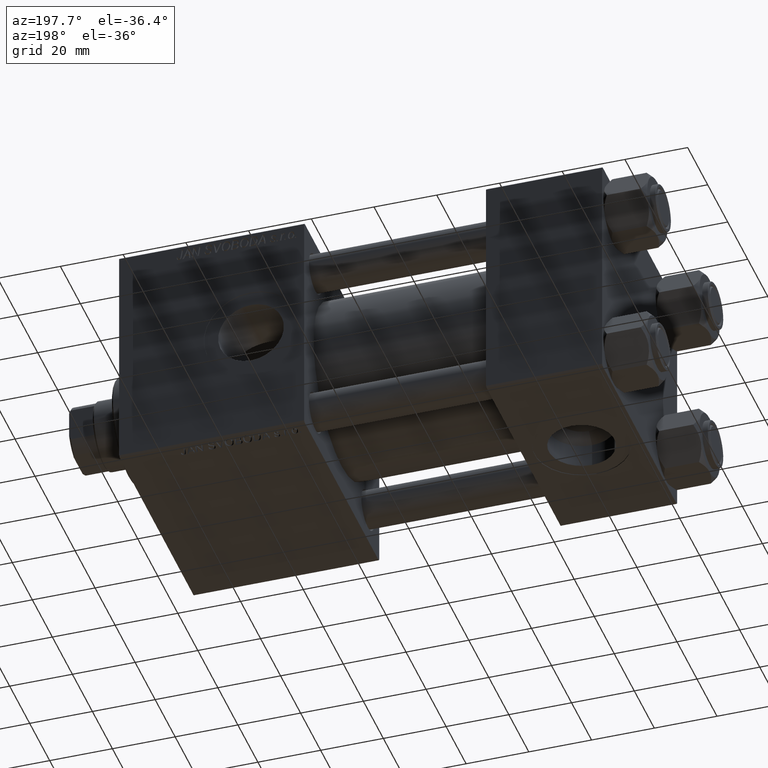
[diagram: clean part render]
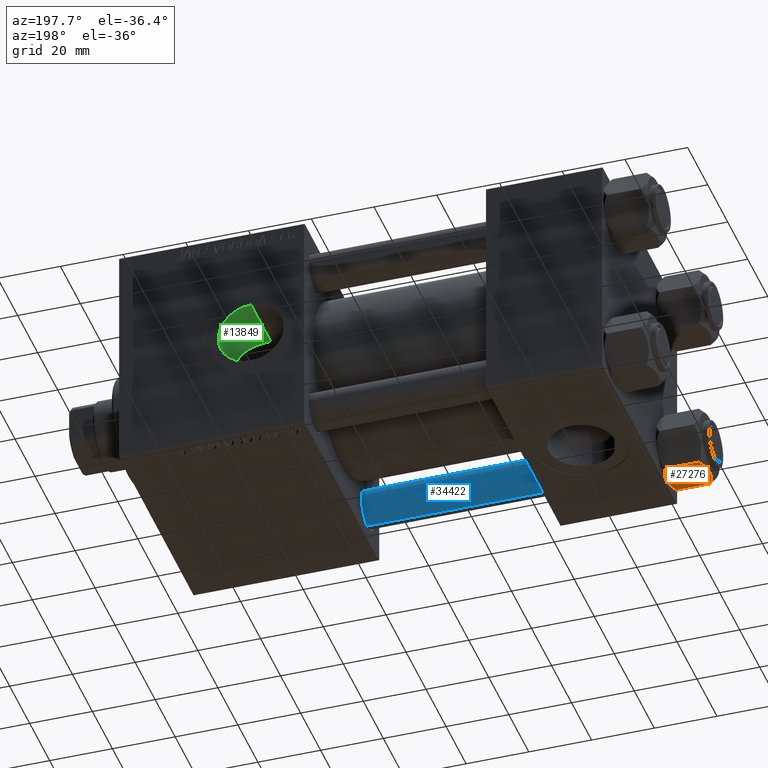
[diagram: same view with three faces highlighted in distinct colors, each labeled with its STEP entity id]
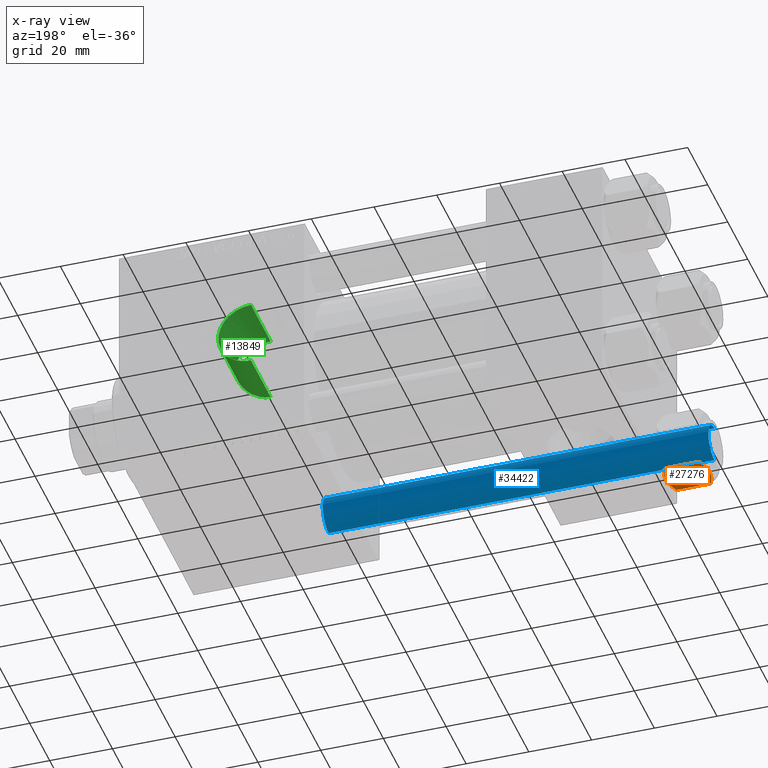
[diagram: x-ray of the same camera — body ghosted, the three highlighted faces saturated]
A machine part, auxiliary view with three faces highlighted in distinct colors.
The next image is the same camera in x-ray (body ghosted, the three faces saturated) — at least one of them is partly hidden behind the body in this view.
Their STEP definitions:

[orange] entity #27276 — the highlighted planar face has unit normal (-0, -0, 1).
#274 = CARTESIAN_POINT ( 'NONE',  ( 8.202333004087902779, 5.919572880271052995, -13.96005881939309212 ) ) ;
#514 = CARTESIAN_POINT ( 'NONE',  ( 8.460569896449619876, 5.472293462311864864, -14.00000000000000355 ) ) ;
#883 = FACE_OUTER_BOUND ( 'NONE', #45793, .T. ) ;
#1301 = CARTESIAN_POINT ( 'NONE',  ( 9.716999946243698005, 3.296092779912227044, -13.84547602999601779 ) ) ;
#1559 = CARTESIAN_POINT ( 'NONE',  ( 10.69662495661650503, 1.599332489581332339, -13.28854452935654962 ) ) ;
#2438 = CARTESIAN_POINT ( 'NONE',  ( 6.733375043383499126, 8.463882702393844326, -0.7114554706434494946 ) ) ;
#3075 = B_SPLINE_CURVE_WITH_KNOTS ( 'NONE', 3,
 ( #23482, #19173, #3940, #7752, #43015, #34670, #23728, #50134 ),
 .UNSPECIFIED., .F., .F.,
 ( 4, 2, 2, 4 ),
 ( 2.544312114903581015E-07, 0.003011550106433540791, 0.004517197944044564449, 0.006022845781655588107 ),
 .UNSPECIFIED. ) ;
#3784 = ORIENTED_EDGE ( 'NONE', *, *, #40224, .F. ) ;
#3940 = CARTESIAN_POINT ( 'NONE',  ( 10.69859855102501278, 1.595914123792262718, -0.7141438259524649501 ) ) ;
#4323 = CARTESIAN_POINT ( 'NONE',  ( 7.700834831386346835, 6.788193195293095172, -13.80960203119265728 ) ) ;
#5202 = PLANE ( 'NONE',  #15118 ) ;
#5827 = VERTEX_POINT ( 'NONE', #46801 ) ;
#6992 = CARTESIAN_POINT ( 'NONE',  ( 5.810000000000000497, 10.06321519197518022, -1.556784808024815892 ) ) ;
#7752 = CARTESIAN_POINT ( 'NONE',  ( 9.974696630283190757, 2.849749030213792000, -0.3002673809867367205 ) ) ;
#8380 = VERTEX_POINT ( 'NONE', #18326 ) ;
#10121 = CARTESIAN_POINT ( 'NONE',  ( 11.62000000000000099, -1.813166800014576593E-15, -14.00000000000000000 ) ) ;
#10271 = ORIENTED_EDGE ( 'NONE', *, *, #49629, .F. ) ;
#11714 = ORIENTED_EDGE ( 'NONE', *, *, #47803, .F. ) ;
#12551 = DIRECTION ( 'NONE',  ( -0.8660254037844387076, -0.4999999999999998335, 0.000000000000000000 ) ) ;
#12939 = CARTESIAN_POINT ( 'NONE',  ( 6.731401448974989599, 8.467301068182914392, -13.28585617404753272 ) ) ;
#13323 = CARTESIAN_POINT ( 'NONE',  ( 5.810000000000000497, 10.06321519197518022, -14.00000000000000000 ) ) ;
#14077 = CARTESIAN_POINT ( 'NONE',  ( 5.810000000000000497, 10.06321519197518022, -12.44321519197518278 ) ) ;
#15118 = AXIS2_PLACEMENT_3D ( 'NONE', #13323, #12551, #39463 ) ;
#15748 = ORIENTED_EDGE ( 'NONE', *, *, #44588, .F. ) ;
#16235 = CARTESIAN_POINT ( 'NONE',  ( 8.715000000000003411, 5.031607595987588333, -14.00000000000000000 ) ) ;
#17630 = VERTEX_POINT ( 'NONE', #24277 ) ;
#18326 = CARTESIAN_POINT ( 'NONE',  ( 8.715000000000003411, 5.031607595987588333, -14.00000000000000000 ) ) ;
#19173 = CARTESIAN_POINT ( 'NONE',  ( 11.16445427487472131, 0.7890283410877956261, -1.101239082899531985 ) ) ;
#19371 = B_SPLINE_CURVE_WITH_KNOTS ( 'NONE', 3,
 ( #25763, #37195, #45067, #2438, #21972, #6992 ),
 .UNSPECIFIED., .F., .F.,
 ( 4, 2, 4 ),
 ( 0.006022845781655588107, 0.009013049135303636758, 0.01200325248895168367 ),
 .UNSPECIFIED. ) ;
#20278 = VERTEX_POINT ( 'NONE', #14077 ) ;
#20327 = ORIENTED_EDGE ( 'NONE', *, *, #40240, .T. ) ;
#21489 = CARTESIAN_POINT ( 'NONE',  ( 11.62000000000000099, -1.924525737834042474E-15, -1.556784808024813893 ) ) ;
#21972 = CARTESIAN_POINT ( 'NONE',  ( 6.265018354709773973, 9.275100283241448196, -1.101766453314953154 ) ) ;
#23151 = VERTEX_POINT ( 'NONE', #21489 ) ;
#23482 = CARTESIAN_POINT ( 'NONE',  ( 11.62000000000000099, -1.924525737834042474E-15, -1.556784808024813893 ) ) ;
#23728 = CARTESIAN_POINT ( 'NONE',  ( 8.969430103550381617, 4.590921729663312689, 3.523657060577888622E-15 ) ) ;
#24277 = CARTESIAN_POINT ( 'NONE',  ( 8.715000000000005187, 5.031607595987590109, 0.000000000000000000 ) ) ;
#24393 = CARTESIAN_POINT ( 'NONE',  ( 8.715000000000003411, 5.031607595987588333, -14.00000000000000000 ) ) ;
#24648 = CARTESIAN_POINT ( 'NONE',  ( 9.220295946303432189, 4.156409344131451356, -14.00000000000000178 ) ) ;
#25515 = CARTESIAN_POINT ( 'NONE',  ( 5.810000000000000497, 10.06321519197518022, -14.00000000000000000 ) ) ;
#25593 = DIRECTION ( 'NONE',  ( -0.000000000000000000, -0.000000000000000000, 1.000000000000000000 ) ) ;
#25763 = CARTESIAN_POINT ( 'NONE',  ( 8.715000000000005187, 5.031607595987590109, 0.000000000000000000 ) ) ;
#26109 = VECTOR ( 'NONE', #25593, 1000.000000000000000 ) ;
#26296 = ORIENTED_EDGE ( 'NONE', *, *, #35121, .F. ) ;
#27276 = ADVANCED_FACE ( 'NONE', ( #883 ), #5202, .F. ) ;
#28707 = CARTESIAN_POINT ( 'NONE',  ( 11.62000000000000099, -1.795242522838921761E-15, -12.44321519197518455 ) ) ;
#29197 = VECTOR ( 'NONE', #33399, 1000.000000000000000 ) ;
#29847 = VERTEX_POINT ( 'NONE', #50206 ) ;
#31226 = CARTESIAN_POINT ( 'NONE',  ( 5.810000000000000497, 10.06321519197518022, -12.44321519197518278 ) ) ;
#32982 = LINE ( 'NONE', #10121, #26109 ) ;
#33399 = DIRECTION ( 'NONE',  ( -0.000000000000000000, -0.000000000000000000, 1.000000000000000000 ) ) ;
#34670 = CARTESIAN_POINT ( 'NONE',  ( 9.227666995912102266, 4.143642311704121894, -0.03994118060690670519 ) ) ;
#35121 = EDGE_CURVE ( 'NONE', #20278, #8380, #45777, .T. ) ;
#35289 = CARTESIAN_POINT ( 'NONE',  ( 6.265545725125283738, 9.274186850887380373, -12.89876091710046602 ) ) ;
#36828 = CARTESIAN_POINT ( 'NONE',  ( 11.16498164529022574, 0.7881149087337280257, -12.89823354668504862 ) ) ;
#37195 = CARTESIAN_POINT ( 'NONE',  ( 8.209704053696576409, 5.906805847843727086, 3.430483436379916373E-15 ) ) ;
#39338 = CARTESIAN_POINT ( 'NONE',  ( 7.455303369716809847, 7.213466161761385997, -13.69973261901326289 ) ) ;
#39463 = DIRECTION ( 'NONE',  ( 0.4999999999999998335, -0.8660254037844387076, 0.000000000000000000 ) ) ;
#40224 = EDGE_CURVE ( 'NONE', #17630, #5827, #19371, .T. ) ;
#40240 = EDGE_CURVE ( 'NONE', #20278, #5827, #45567, .T. ) ;
#41782 = B_SPLINE_CURVE_WITH_KNOTS ( 'NONE', 3,
 ( #24393, #24648, #1301, #1559, #36828, #28707 ),
 .UNSPECIFIED., .F., .F.,
 ( 4, 2, 4 ),
 ( 0.006022845781655591577, 0.009013049135303638493, 0.01200325248895168714 ),
 .UNSPECIFIED. ) ;
#43015 = CARTESIAN_POINT ( 'NONE',  ( 9.729165168613654657, 3.275021996682081493, -0.1903979688073405840 ) ) ;
#44588 = EDGE_CURVE ( 'NONE', #29847, #23151, #32982, .T. ) ;
#45067 = CARTESIAN_POINT ( 'NONE',  ( 7.713000053756307928, 6.767122412062951398, -0.1545239700039825748 ) ) ;
#45567 = LINE ( 'NONE', #25515, #29197 ) ;
#45777 = B_SPLINE_CURVE_WITH_KNOTS ( 'NONE', 3,
 ( #31226, #35289, #12939, #39338, #4323, #274, #514, #16235 ),
 .UNSPECIFIED., .F., .F.,
 ( 4, 2, 2, 4 ),
 ( 2.544312114902182352E-07, 0.003011550106433540791, 0.004517197944044566184, 0.006022845781655591577 ),
 .UNSPECIFIED. ) ;
#45793 = EDGE_LOOP ( 'NONE', ( #26296, #20327, #3784, #11714, #15748, #10271 ) ) ;
#46801 = CARTESIAN_POINT ( 'NONE',  ( 5.810000000000000497, 10.06321519197518022, -1.556784808024815892 ) ) ;
#47803 = EDGE_CURVE ( 'NONE', #23151, #17630, #3075, .T. ) ;
#49629 = EDGE_CURVE ( 'NONE', #8380, #29847, #41782, .T. ) ;
#50134 = CARTESIAN_POINT ( 'NONE',  ( 8.715000000000005187, 5.031607595987590109, 0.000000000000000000 ) ) ;
#50206 = CARTESIAN_POINT ( 'NONE',  ( 11.62000000000000099, -1.795242522838921761E-15, -12.44321519197518455 ) ) ;

[blue] entity #34422 — the highlighted cylindrical surface (edge-blend (fillet) strip) has radius 6 mm, axis along (-1, 0, -0).
#904 = EDGE_LOOP ( 'NONE', ( #28853, #45798, #32213, #46600 ) ) ;
#3795 = EDGE_CURVE ( 'NONE', #34484, #18796, #33601, .T. ) ;
#4112 = CARTESIAN_POINT ( 'NONE',  ( -6.000000000000000888, 0.000000000000000000, 123.5000000000000426 ) ) ;
#6136 = DIRECTION ( 'NONE',  ( -0.000000000000000000, -0.000000000000000000, 1.000000000000000000 ) ) ;
#7387 = CARTESIAN_POINT ( 'NONE',  ( 6.000000000000000888, 7.347880794884120722E-16, 0.4999999999999865663 ) ) ;
#8002 = EDGE_CURVE ( 'NONE', #34484, #45919, #45741, .T. ) ;
#9080 = CIRCLE ( 'NONE', #22070, 6.000000000000000888 ) ;
#15723 = AXIS2_PLACEMENT_3D ( 'NONE', #38973, #35180, #46846 ) ;
#16611 = DIRECTION ( 'NONE',  ( -0.000000000000000000, -0.000000000000000000, -1.000000000000000000 ) ) ;
#18110 = CARTESIAN_POINT ( 'NONE',  ( 6.000000000000000888, 7.347880794884120722E-16, 124.0000000000000000 ) ) ;
#18796 = VERTEX_POINT ( 'NONE', #7387 ) ;
#19579 = LINE ( 'NONE', #27191, #47191 ) ;
#22070 = AXIS2_PLACEMENT_3D ( 'NONE', #48527, #6136, #40655 ) ;
#23973 = FACE_OUTER_BOUND ( 'NONE', #904, .T. ) ;
#24734 = CYLINDRICAL_SURFACE ( 'NONE', #47756, 6.000000000000000888 ) ;
#27191 = CARTESIAN_POINT ( 'NONE',  ( -6.000000000000000888, 0.000000000000000000, 124.0000000000000000 ) ) ;
#28561 = VECTOR ( 'NONE', #44763, 1000.000000000000000 ) ;
#28853 = ORIENTED_EDGE ( 'NONE', *, *, #3795, .F. ) ;
#29793 = CARTESIAN_POINT ( 'NONE',  ( 6.000000000000000888, 7.347880794884120722E-16, 123.5000000000000426 ) ) ;
#32213 = ORIENTED_EDGE ( 'NONE', *, *, #48671, .T. ) ;
#33601 = LINE ( 'NONE', #18110, #28561 ) ;
#33613 = CARTESIAN_POINT ( 'NONE',  ( -6.000000000000000888, 0.000000000000000000, 0.4999999999999865663 ) ) ;
#34422 = ADVANCED_FACE ( 'NONE', ( #23973 ), #24734, .T. ) ;
#34484 = VERTEX_POINT ( 'NONE', #29793 ) ;
#34583 = DIRECTION ( 'NONE',  ( -0.000000000000000000, -0.000000000000000000, -1.000000000000000000 ) ) ;
#35180 = DIRECTION ( 'NONE',  ( 0.000000000000000000, 0.000000000000000000, -1.000000000000000000 ) ) ;
#35912 = CARTESIAN_POINT ( 'NONE',  ( 0.000000000000000000, 0.000000000000000000, 124.0000000000000000 ) ) ;
#38973 = CARTESIAN_POINT ( 'NONE',  ( 0.000000000000000000, 0.000000000000000000, 123.5000000000000426 ) ) ;
#40655 = DIRECTION ( 'NONE',  ( 1.000000000000000000, 0.000000000000000000, 0.000000000000000000 ) ) ;
#44763 = DIRECTION ( 'NONE',  ( -0.000000000000000000, -0.000000000000000000, -1.000000000000000000 ) ) ;
#45097 = EDGE_CURVE ( 'NONE', #47990, #18796, #9080, .T. ) ;
#45741 = CIRCLE ( 'NONE', #15723, 6.000000000000000888 ) ;
#45798 = ORIENTED_EDGE ( 'NONE', *, *, #8002, .T. ) ;
#45919 = VERTEX_POINT ( 'NONE', #4112 ) ;
#46600 = ORIENTED_EDGE ( 'NONE', *, *, #45097, .T. ) ;
#46846 = DIRECTION ( 'NONE',  ( 1.000000000000000000, 0.000000000000000000, 0.000000000000000000 ) ) ;
#47191 = VECTOR ( 'NONE', #34583, 1000.000000000000000 ) ;
#47582 = DIRECTION ( 'NONE',  ( -1.000000000000000000, 0.000000000000000000, 0.000000000000000000 ) ) ;
#47756 = AXIS2_PLACEMENT_3D ( 'NONE', #35912, #16611, #47582 ) ;
#47990 = VERTEX_POINT ( 'NONE', #33613 ) ;
#48527 = CARTESIAN_POINT ( 'NONE',  ( 0.000000000000000000, 0.000000000000000000, 0.4999999999999865663 ) ) ;
#48671 = EDGE_CURVE ( 'NONE', #45919, #47990, #19579, .T. ) ;

[green] entity #13849 — the highlighted cylindrical surface (edge-blend (fillet) strip) has radius 10.48 mm, axis along (0, 1, 0).
#840 = DIRECTION ( 'NONE',  ( 0.000000000000000000, 0.000000000000000000, 1.000000000000000000 ) ) ;
#1352 = CARTESIAN_POINT ( 'NONE',  ( 120.4999147892471996, 19.56116441448279275, -6.139806945683417894 ) ) ;
#1607 = CARTESIAN_POINT ( 'NONE',  ( 121.3974749849019759, 19.96693071714090095, 4.688762655380822153 ) ) ;
#1861 = CARTESIAN_POINT ( 'NONE',  ( 118.9214008731941590, 18.92439466425729577, -7.897867506656472969 ) ) ;
#2107 = CARTESIAN_POINT ( 'NONE',  ( 120.3010601172642851, 19.47534253776996493, 6.406026005484636521 ) ) ;
#5086 = EDGE_CURVE ( 'NONE', #27365, #20712, #27743, .T. ) ;
#5121 = EDGE_CURVE ( 'NONE', #26749, #11161, #45324, .T. ) ;
#5409 = CARTESIAN_POINT ( 'NONE',  ( 121.9121103210051160, 20.21538003116037530, 3.420739323187325542 ) ) ;
#5631 = CARTESIAN_POINT ( 'NONE',  ( 112.0000000000000000, -29.64191626734007912, 0.000000000000000000 ) ) ;
#5911 = CARTESIAN_POINT ( 'NONE',  ( 113.3976639497380461, 17.66125895070197771, 10.40936906255472216 ) ) ;
#6159 = CARTESIAN_POINT ( 'NONE',  ( 122.4802336042432813, 20.50011942302709045, -0.3425484063042021909 ) ) ;
#8955 = CARTESIAN_POINT ( 'NONE',  ( 118.4004368932585720, 18.74369128016567387, 8.305322126603240207 ) ) ;
#9212 = CARTESIAN_POINT ( 'NONE',  ( 118.1274724521041719, 18.65191114885655921, 8.508822594309938481 ) ) ;
#9422 = AXIS2_PLACEMENT_3D ( 'NONE', #5631, #36347, #21109 ) ;
#9713 = CARTESIAN_POINT ( 'NONE',  ( 114.7517918553086815, 17.82937747091141745, -10.11814121640941977 ) ) ;
#9962 = CARTESIAN_POINT ( 'NONE',  ( 118.9208000802965017, 18.92770044493005344, 7.876959711703419131 ) ) ;
#11161 = VERTEX_POINT ( 'NONE', #49710 ) ;
#13018 = CARTESIAN_POINT ( 'NONE',  ( 115.7316525968403909, 18.00698426560946785, -9.799012303646877697 ) ) ;
#13239 = FACE_OUTER_BOUND ( 'NONE', #38692, .T. ) ;
#13274 = CARTESIAN_POINT ( 'NONE',  ( 114.4117388817928571, 17.77978347898471867, -10.20468712638896314 ) ) ;
#13526 = CARTESIAN_POINT ( 'NONE',  ( 121.0753406510826693, 19.81579007690006478, 5.284993006292010520 ) ) ;
#13774 = CARTESIAN_POINT ( 'NONE',  ( 122.2033794505126423, 20.35988782059471802, -2.416918645675844246 ) ) ;
#13849 = ADVANCED_FACE ( 'NONE', ( #13239 ), #40396, .F. ) ;
#15258 = VECTOR ( 'NONE', #31290, 1000.000000000000000 ) ;
#16694 = CARTESIAN_POINT ( 'NONE',  ( 112.0000000000000000, 37.30000000000000426, -10.48000000000000043 ) ) ;
#16826 = CARTESIAN_POINT ( 'NONE',  ( 119.6355061185646207, 19.20084332853421927, -7.186262701390801588 ) ) ;
#17079 = CARTESIAN_POINT ( 'NONE',  ( 122.1171167833675071, 20.31668552684609352, 2.755963810480850373 ) ) ;
#17582 = CARTESIAN_POINT ( 'NONE',  ( 120.5059389822772431, 19.56378363404860465, 6.131479575291227668 ) ) ;
#17832 = CARTESIAN_POINT ( 'NONE',  ( 122.4097772764918375, 20.46384513083377144, 1.395899531135791571 ) ) ;
#19330 = LINE ( 'NONE', #49539, #19382 ) ;
#19382 = VECTOR ( 'NONE', #38372, 1000.000000000000000 ) ;
#20643 = CARTESIAN_POINT ( 'NONE',  ( 115.7388044511369003, 18.00843789971822062, 9.796359556932754842 ) ) ;
#20712 = VERTEX_POINT ( 'NONE', #16694 ) ;
#20891 = CARTESIAN_POINT ( 'NONE',  ( 121.9143567042892613, 20.21648401901770242, -3.414064357787312431 ) ) ;
#21109 = DIRECTION ( 'NONE',  ( 0.000000000000000000, 0.000000000000000000, 1.000000000000000000 ) ) ;
#21139 = CARTESIAN_POINT ( 'NONE',  ( 117.2809392282039056, 18.38534749593159034, 9.077687108452133558 ) ) ;
#21642 = CARTESIAN_POINT ( 'NONE',  ( 120.2950042909065473, 19.47275237916150914, -6.413928077769824654 ) ) ;
#23450 = DIRECTION ( 'NONE',  ( 0.000000000000000000, 1.000000000000000000, 0.000000000000000000 ) ) ;
#23676 = CARTESIAN_POINT ( 'NONE',  ( 112.0000000000000000, -29.64191626734007912, -10.48000000000000043 ) ) ;
#24439 = CARTESIAN_POINT ( 'NONE',  ( 122.4795256292976546, 20.49975749248165258, 0.7063185015118506049 ) ) ;
#24694 = CARTESIAN_POINT ( 'NONE',  ( 121.7943312172880610, 20.15775460056885393, 3.744079838711329433 ) ) ;
#25190 = CARTESIAN_POINT ( 'NONE',  ( 122.3928111929841691, 20.45554254497156421, -1.393750078236607681 ) ) ;
#25441 = CARTESIAN_POINT ( 'NONE',  ( 112.0000000000000142, 17.61872867150180966, 10.48000000000000043 ) ) ;
#26749 = VERTEX_POINT ( 'NONE', #38158 ) ;
#27365 = VERTEX_POINT ( 'NONE', #48839 ) ;
#27743 = CIRCLE ( 'NONE', #44798, 10.48000000000000043 ) ;
#28496 = CARTESIAN_POINT ( 'NONE',  ( 113.3856855712779037, 17.66007330123388641, -10.41139618991193849 ) ) ;
#28752 = CARTESIAN_POINT ( 'NONE',  ( 112.0000000000000000, 17.61872867150181321, -10.48000000000000043 ) ) ;
#29002 = CARTESIAN_POINT ( 'NONE',  ( 117.2698059898622773, 18.38209842868087662, -9.084287127380747506 ) ) ;
#29249 = CARTESIAN_POINT ( 'NONE',  ( 121.0695376723144818, 19.81313001252936346, -5.294847441557593903 ) ) ;
#30806 = LINE ( 'NONE', #23676, #15258 ) ;
#31290 = DIRECTION ( 'NONE',  ( -0.000000000000000000, 1.000000000000000000, -0.000000000000000000 ) ) ;
#32310 = CARTESIAN_POINT ( 'NONE',  ( 118.4022582705815552, 18.73818556942358526, -8.325035544684061151 ) ) ;
#32567 = CARTESIAN_POINT ( 'NONE',  ( 122.2035601589205243, 20.35997823095241799, 2.416228402922031115 ) ) ;
#32820 = CARTESIAN_POINT ( 'NONE',  ( 114.4142194256315150, 17.78018015198200175, 10.20399195237437162 ) ) ;
#33070 = CARTESIAN_POINT ( 'NONE',  ( 119.1694529724450433, 19.02032395108154006, 7.651277358185459398 ) ) ;
#35368 = CARTESIAN_POINT ( 'NONE',  ( 112.0000000000000000, 37.30000000000000426, 0.000000000000000000 ) ) ;
#35481 = EDGE_CURVE ( 'NONE', #11161, #20712, #30806, .T. ) ;
#36125 = CARTESIAN_POINT ( 'NONE',  ( 119.8707823291916839, 19.29586956751500182, 6.927882344545549742 ) ) ;
#36347 = DIRECTION ( 'NONE',  ( -0.000000000000000000, 1.000000000000000000, -0.000000000000000000 ) ) ;
#36379 = CARTESIAN_POINT ( 'NONE',  ( 121.7950853774353845, 20.15811396168941627, -3.742424843370363519 ) ) ;
#36625 = CARTESIAN_POINT ( 'NONE',  ( 121.3940450107149047, 19.96528801265270303, -4.696645970771019307 ) ) ;
#37119 = CARTESIAN_POINT ( 'NONE',  ( 119.8626657555755770, 19.29255042284154342, -6.937150480497088267 ) ) ;
#38158 = CARTESIAN_POINT ( 'NONE',  ( 112.0000000000000142, 17.61872867150180966, 10.48000000000000043 ) ) ;
#38297 = EDGE_CURVE ( 'NONE', #26749, #27365, #19330, .T. ) ;
#38372 = DIRECTION ( 'NONE',  ( -0.000000000000000000, 1.000000000000000000, -0.000000000000000000 ) ) ;
#38692 = EDGE_LOOP ( 'NONE', ( #38872, #49695, #44801, #38779 ) ) ;
#38779 = ORIENTED_EDGE ( 'NONE', *, *, #5086, .T. ) ;
#38872 = ORIENTED_EDGE ( 'NONE', *, *, #35481, .F. ) ;
#39926 = CARTESIAN_POINT ( 'NONE',  ( 122.1180965413908979, 20.31717585818016758, -2.752167632629412442 ) ) ;
#40179 = CARTESIAN_POINT ( 'NONE',  ( 122.3407356452803043, 20.42906981586845916, -1.737709488202404895 ) ) ;
#40396 = CYLINDRICAL_SURFACE ( 'NONE', #9422, 10.48000000000000043 ) ;
#40427 = CARTESIAN_POINT ( 'NONE',  ( 112.7062749642731063, 17.61872867150182032, 10.48000000000000043 ) ) ;
#40681 = CARTESIAN_POINT ( 'NONE',  ( 115.4136267970940537, 17.94339702168920780, 9.914545255425011305 ) ) ;
#40932 = CARTESIAN_POINT ( 'NONE',  ( 119.6444445321607617, 19.20440573111459770, 7.176738042502336157 ) ) ;
#43735 = CARTESIAN_POINT ( 'NONE',  ( 114.7496294778310357, 17.82899635519297021, 10.11882370961919975 ) ) ;
#43988 = CARTESIAN_POINT ( 'NONE',  ( 112.6958015189378699, 17.61872867150180966, -10.47999999999999865 ) ) ;
#44737 = CARTESIAN_POINT ( 'NONE',  ( 116.6847448576400552, 18.22055821971024159, 9.399534179362841968 ) ) ;
#44798 = AXIS2_PLACEMENT_3D ( 'NONE', #35368, #23450, #840 ) ;
#44801 = ORIENTED_EDGE ( 'NONE', *, *, #38297, .T. ) ;
#45324 = B_SPLINE_CURVE_WITH_KNOTS ( 'NONE', 3,
 ( #25441, #40427, #5911, #32820, #43735, #40681, #20643, #44737, #21139, #9212, #8955, #9962, #33070, #40932, #36125, #2107, #17582, #13526, #1607, #24694, #5409, #17079, #32567, #17832, #24439, #6159, #48551, #25190, #40179, #13774, #39926, #20891, #36379, #36625, #29249, #1352, #21642, #37119, #16826, #1861, #32310, #29002, #47794, #13018, #48045, #9713, #13274, #28496, #43988, #28752 ),
 .UNSPECIFIED., .F., .F.,
 ( 4, 2, 2, 2, 2, 2, 2, 2, 2, 2, 2, 2, 2, 2, 2, 2, 2, 2, 2, 2, 2, 2, 2, 2, 4 ),
 ( 1.398578778534940505E-17, 0.002085098827197961677, 0.003127648240796935576, 0.004170197654395909476, 0.006255296481593856407, 0.007297845895192831174, 0.008340395308791805074, 0.009382944722390779840, 0.01042549413598975287, 0.01251059296318770067, 0.01355314237678667544, 0.01459569179038564847, 0.01668079061758358933, 0.01772334003118256063, 0.01876588944478152846, 0.01980843885838049975, 0.02085098827197947105, 0.02293608709917739630, 0.02397863651277635719, 0.02502118592637532155, 0.02710628475357327455, 0.02919138358077123102, 0.03023393299437022660, 0.03127648240796922219, 0.03336158123516717866 ),
 .UNSPECIFIED. ) ;
#47794 = CARTESIAN_POINT ( 'NONE',  ( 116.6720912961967827, 18.21742687740514199, -9.405522624613402272 ) ) ;
#48045 = CARTESIAN_POINT ( 'NONE',  ( 115.4105071959817366, 17.94285099751830970, -9.915522212990259376 ) ) ;
#48551 = CARTESIAN_POINT ( 'NONE',  ( 122.4626750047746810, 20.49112648371635359, -0.6967750842739059980 ) ) ;
#48839 = CARTESIAN_POINT ( 'NONE',  ( 112.0000000000000000, 37.30000000000000426, 10.48000000000000043 ) ) ;
#49539 = CARTESIAN_POINT ( 'NONE',  ( 112.0000000000000000, -29.64191626734007912, 10.48000000000000043 ) ) ;
#49695 = ORIENTED_EDGE ( 'NONE', *, *, #5121, .F. ) ;
#49710 = CARTESIAN_POINT ( 'NONE',  ( 112.0000000000000000, 17.61872867150181321, -10.48000000000000043 ) ) ;